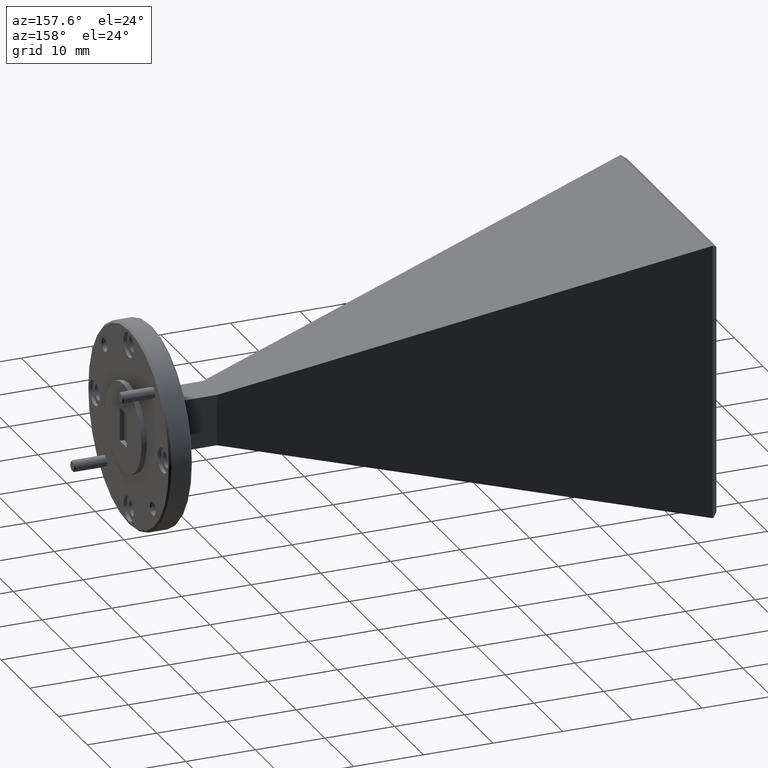
[diagram: clean part render]
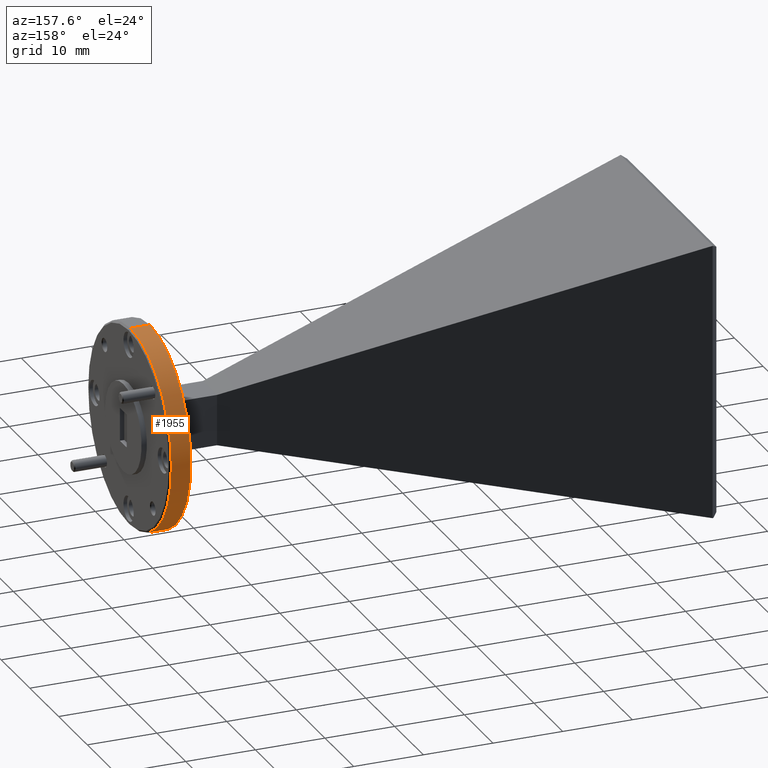
[diagram: same view with one face highlighted and labeled with its STEP entity id]
A machine part, auxiliary view. The second image highlights one B-rep face of the part: STEP entity #1955.
In plain terms, the highlighted cylindrical surface (partial cylindrical patch) has radius 14.2875 mm, axis along (-1, -0, -0).
Its self-contained STEP definition (entity closure, byte-faithful):
#13 = DIRECTION ( 'NONE',  ( 0.0000000000000000000, 0.0000000000000000000, 1.000000000000000000 ) ) ;
#27 = CARTESIAN_POINT ( 'NONE',  ( 2.503564782623160800, 1.586671098379451600, 2.493166721494955300 ) ) ;
#42 = EDGE_CURVE ( 'NONE', #55, #2305, #581, .T. ) ;
#55 = VERTEX_POINT ( 'NONE', #831 ) ;
#120 = CARTESIAN_POINT ( 'NONE',  ( 2.503564782623160800, 1.586671098379451600, 1.930666721494955300 ) ) ;
#181 = ORIENTED_EDGE ( 'NONE', *, *, #42, .F. ) ;
#310 = DIRECTION ( 'NONE',  ( -1.000000000000000000, -0.0000000000000000000, -0.0000000000000000000 ) ) ;
#316 = VERTEX_POINT ( 'NONE', #1573 ) ;
#352 = EDGE_CURVE ( 'NONE', #2305, #316, #1479, .T. ) ;
#477 = CARTESIAN_POINT ( 'NONE',  ( 2.503564782623160800, 1.586671098379451600, 3.055666721494955300 ) ) ;
#508 = AXIS2_PLACEMENT_3D ( 'NONE', #27, #1654, #2191 ) ;
#581 = LINE ( 'NONE', #477, #2062 ) ;
#635 = LINE ( 'NONE', #120, #1036 ) ;
#776 = AXIS2_PLACEMENT_3D ( 'NONE', #1457, #1837, #13 ) ;
#788 = ORIENTED_EDGE ( 'NONE', *, *, #910, .T. ) ;
#831 = CARTESIAN_POINT ( 'NONE',  ( 2.493564782623162400, 1.586671098379451600, 3.055666721494955300 ) ) ;
#845 = CYLINDRICAL_SURFACE ( 'NONE', #508, 0.5624999999999997800 ) ;
#910 = EDGE_CURVE ( 'NONE', #1198, #316, #635, .T. ) ;
#1005 = EDGE_LOOP ( 'NONE', ( #1347, #788, #1683, #181 ) ) ;
#1013 = AXIS2_PLACEMENT_3D ( 'NONE', #1404, #310, #1809 ) ;
#1036 = VECTOR ( 'NONE', #1190, 39.37007874015748100 ) ;
#1151 = CARTESIAN_POINT ( 'NONE',  ( 2.383564782623162500, 1.586671098379451600, 3.055666721494955800 ) ) ;
#1190 = DIRECTION ( 'NONE',  ( -1.000000000000000000, -0.0000000000000000000, -0.0000000000000000000 ) ) ;
#1198 = VERTEX_POINT ( 'NONE', #1637 ) ;
#1347 = ORIENTED_EDGE ( 'NONE', *, *, #2325, .T. ) ;
#1404 = CARTESIAN_POINT ( 'NONE',  ( 2.383564782623162500, 1.586671098379451600, 2.493166721494955300 ) ) ;
#1457 = CARTESIAN_POINT ( 'NONE',  ( 2.493564782623162400, 1.586671098379451600, 2.493166721494955300 ) ) ;
#1479 = CIRCLE ( 'NONE', #1013, 0.5625000000000003300 ) ;
#1573 = CARTESIAN_POINT ( 'NONE',  ( 2.383564782623162500, 1.586671098379451600, 1.930666721494955100 ) ) ;
#1637 = CARTESIAN_POINT ( 'NONE',  ( 2.493564782623162400, 1.586671098379451600, 1.930666721494955300 ) ) ;
#1654 = DIRECTION ( 'NONE',  ( -1.000000000000000000, -0.0000000000000000000, -0.0000000000000000000 ) ) ;
#1683 = ORIENTED_EDGE ( 'NONE', *, *, #352, .F. ) ;
#1809 = DIRECTION ( 'NONE',  ( 0.0000000000000000000, 0.0000000000000000000, -1.000000000000000000 ) ) ;
#1837 = DIRECTION ( 'NONE',  ( -1.000000000000000000, -0.0000000000000000000, -0.0000000000000000000 ) ) ;
#1924 = FACE_OUTER_BOUND ( 'NONE', #1005, .T. ) ;
#1931 = DIRECTION ( 'NONE',  ( -1.000000000000000000, -0.0000000000000000000, -0.0000000000000000000 ) ) ;
#1955 = ADVANCED_FACE ( 'NONE', ( #1924 ), #845, .T. ) ;
#2062 = VECTOR ( 'NONE', #1931, 39.37007874015748100 ) ;
#2119 = CIRCLE ( 'NONE', #776, 0.5624999999999997800 ) ;
#2191 = DIRECTION ( 'NONE',  ( 0.0000000000000000000, 0.0000000000000000000, 1.000000000000000000 ) ) ;
#2305 = VERTEX_POINT ( 'NONE', #1151 ) ;
#2325 = EDGE_CURVE ( 'NONE', #55, #1198, #2119, .T. ) ;